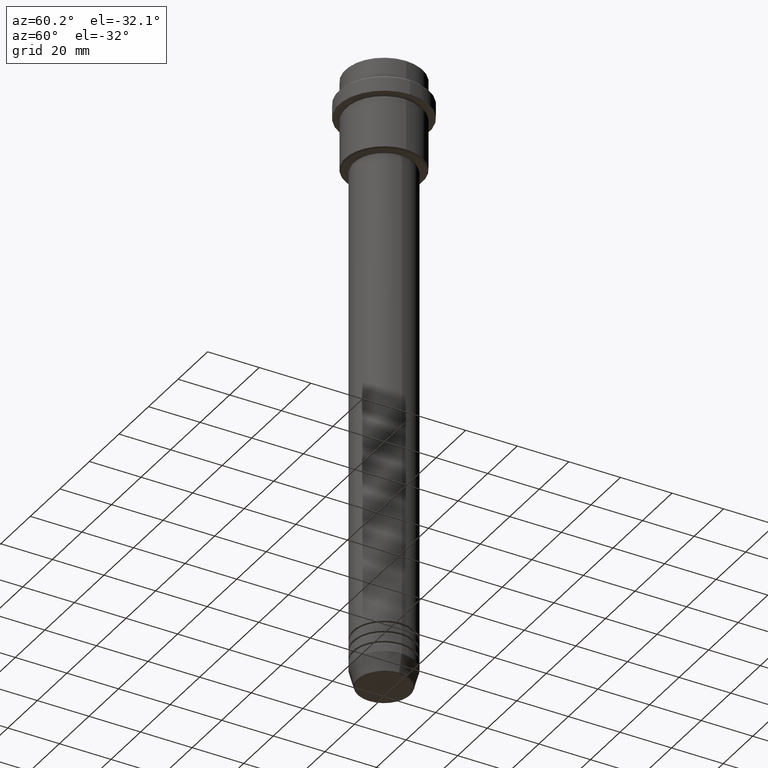
[diagram: clean part render]
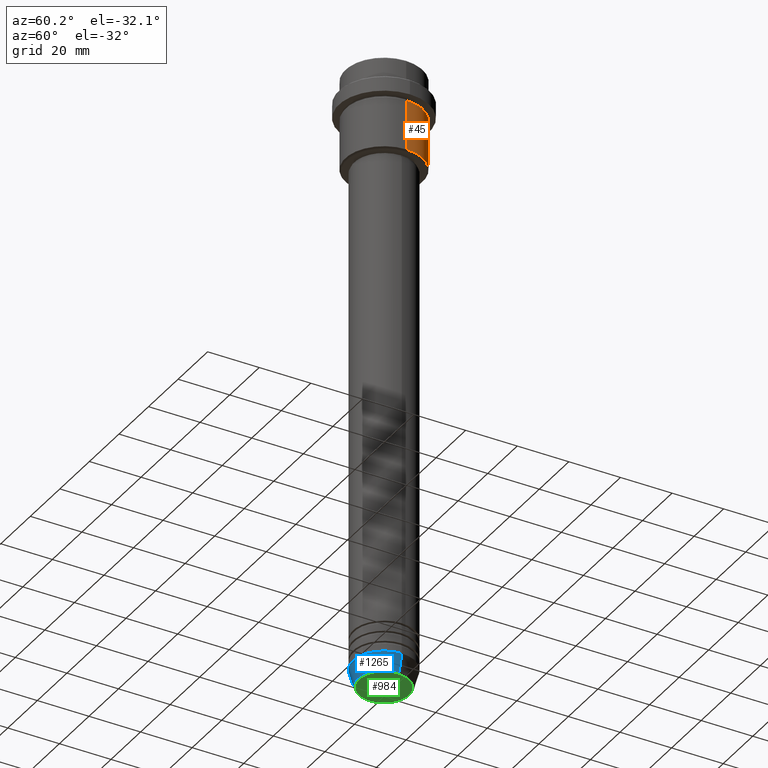
[diagram: same view with three faces highlighted in distinct colors, each labeled with its STEP entity id]
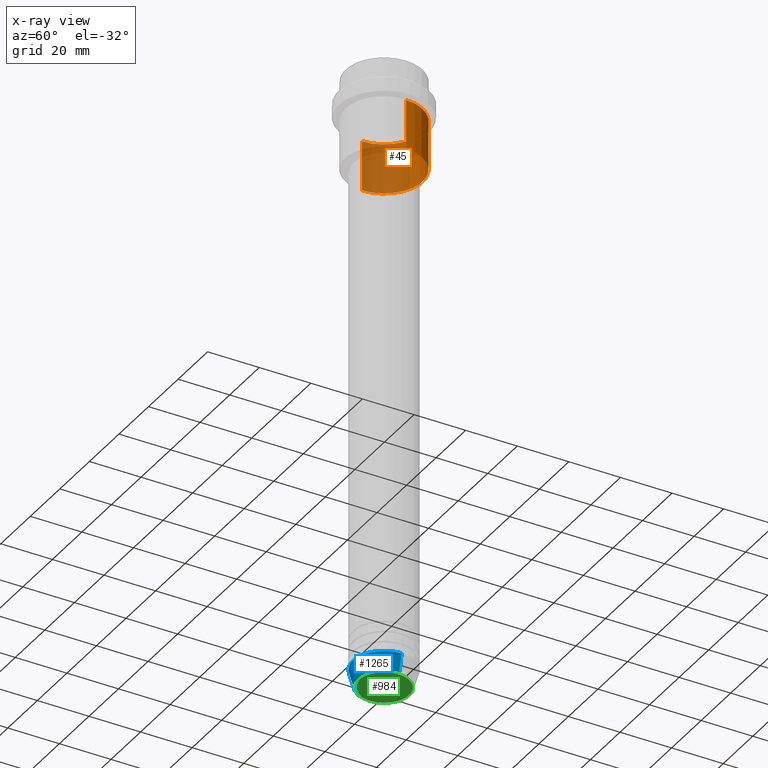
[diagram: x-ray of the same camera — body ghosted, the three highlighted faces saturated]
A machine part, auxiliary view with three faces highlighted in distinct colors.
The next image is the same camera in x-ray (body ghosted, the three faces saturated) — at least one of them is partly hidden behind the body in this view.
Their STEP definitions:

[orange] entity #45 — the highlighted cylindrical surface (partial cylindrical patch) has radius 15 mm, axis along (-0, -0, 1).
#18 = CARTESIAN_POINT ( 'NONE',  ( -15.00000000000000000, 1.836970198721029589E-15, 0.000000000000000000 ) ) ;
#45 = ADVANCED_FACE ( 'NONE', ( #225 ), #465, .T. ) ;
#96 = CIRCLE ( 'NONE', #1009, 15.00000000000000000 ) ;
#172 = ORIENTED_EDGE ( 'NONE', *, *, #313, .T. ) ;
#225 = FACE_OUTER_BOUND ( 'NONE', #430, .T. ) ;
#236 = CIRCLE ( 'NONE', #393, 15.00000000000000178 ) ;
#246 = DIRECTION ( 'NONE',  ( -0.000000000000000000, -0.000000000000000000, 1.000000000000000000 ) ) ;
#255 = AXIS2_PLACEMENT_3D ( 'NONE', #1216, #1108, #568 ) ;
#275 = VERTEX_POINT ( 'NONE', #811 ) ;
#313 = EDGE_CURVE ( 'NONE', #538, #275, #96, .T. ) ;
#393 = AXIS2_PLACEMENT_3D ( 'NONE', #1160, #834, #496 ) ;
#403 = DIRECTION ( 'NONE',  ( -0.000000000000000000, -0.000000000000000000, 1.000000000000000000 ) ) ;
#407 = CARTESIAN_POINT ( 'NONE',  ( 15.00000000000000000, 0.000000000000000000, 0.000000000000000000 ) ) ;
#430 = EDGE_LOOP ( 'NONE', ( #172, #1121, #1200, #1296 ) ) ;
#465 = CYLINDRICAL_SURFACE ( 'NONE', #255, 15.00000000000000000 ) ;
#496 = DIRECTION ( 'NONE',  ( 1.000000000000000000, 0.000000000000000000, 0.000000000000000000 ) ) ;
#507 = LINE ( 'NONE', #407, #1143 ) ;
#538 = VERTEX_POINT ( 'NONE', #918 ) ;
#568 = DIRECTION ( 'NONE',  ( 1.000000000000000000, 0.000000000000000000, 0.000000000000000000 ) ) ;
#570 = CARTESIAN_POINT ( 'NONE',  ( 15.00000000000000178, 0.000000000000000000, -16.00000000000000000 ) ) ;
#627 = DIRECTION ( 'NONE',  ( -1.000000000000000000, 0.000000000000000000, 0.000000000000000000 ) ) ;
#632 = CARTESIAN_POINT ( 'NONE',  ( 0.000000000000000000, 0.000000000000000000, -35.49999999999993605 ) ) ;
#643 = EDGE_CURVE ( 'NONE', #538, #895, #507, .T. ) ;
#669 = EDGE_CURVE ( 'NONE', #895, #1006, #236, .T. ) ;
#811 = CARTESIAN_POINT ( 'NONE',  ( -15.00000000000000000, 1.836970198721029589E-15, -35.49999999999993605 ) ) ;
#834 = DIRECTION ( 'NONE',  ( -0.000000000000000000, -0.000000000000000000, 1.000000000000000000 ) ) ;
#895 = VERTEX_POINT ( 'NONE', #570 ) ;
#918 = CARTESIAN_POINT ( 'NONE',  ( 15.00000000000000000, 0.000000000000000000, -35.49999999999993605 ) ) ;
#1006 = VERTEX_POINT ( 'NONE', #1225 ) ;
#1009 = AXIS2_PLACEMENT_3D ( 'NONE', #632, #403, #627 ) ;
#1108 = DIRECTION ( 'NONE',  ( -0.000000000000000000, -0.000000000000000000, 1.000000000000000000 ) ) ;
#1121 = ORIENTED_EDGE ( 'NONE', *, *, #1389, .T. ) ;
#1143 = VECTOR ( 'NONE', #1240, 1000.000000000000000 ) ;
#1160 = CARTESIAN_POINT ( 'NONE',  ( 0.000000000000000000, 0.000000000000000000, -16.00000000000000000 ) ) ;
#1200 = ORIENTED_EDGE ( 'NONE', *, *, #669, .F. ) ;
#1209 = VECTOR ( 'NONE', #246, 1000.000000000000000 ) ;
#1216 = CARTESIAN_POINT ( 'NONE',  ( 0.000000000000000000, 0.000000000000000000, 0.000000000000000000 ) ) ;
#1225 = CARTESIAN_POINT ( 'NONE',  ( -15.00000000000000355, 1.836970198721029983E-15, -16.00000000000000000 ) ) ;
#1240 = DIRECTION ( 'NONE',  ( -0.000000000000000000, -0.000000000000000000, 1.000000000000000000 ) ) ;
#1296 = ORIENTED_EDGE ( 'NONE', *, *, #643, .F. ) ;
#1336 = LINE ( 'NONE', #18, #1209 ) ;
#1389 = EDGE_CURVE ( 'NONE', #275, #1006, #1336, .T. ) ;

[blue] entity #1265 — the highlighted conical surface has half-angle 15 deg.
#1 = CARTESIAN_POINT ( 'NONE',  ( 0.000000000000000000, 0.000000000000000000, -240.6294095225512422 ) ) ;
#24 = EDGE_CURVE ( 'NONE', #92, #341, #245, .T. ) ;
#27 = CARTESIAN_POINT ( 'NONE',  ( 12.00000000000000000, 0.000000000000000000, -234.0000000000000000 ) ) ;
#92 = VERTEX_POINT ( 'NONE', #986 ) ;
#138 = VECTOR ( 'NONE', #555, 1000.000000000000000 ) ;
#200 = DIRECTION ( 'NONE',  ( 1.000000000000000000, 0.000000000000000000, 0.000000000000000000 ) ) ;
#220 = ORIENTED_EDGE ( 'NONE', *, *, #841, .T. ) ;
#229 = DIRECTION ( 'NONE',  ( 1.000000000000000000, 0.000000000000000000, 0.000000000000000000 ) ) ;
#245 = LINE ( 'NONE', #27, #138 ) ;
#259 = EDGE_LOOP ( 'NONE', ( #1361, #220, #425, #564 ) ) ;
#262 = AXIS2_PLACEMENT_3D ( 'NONE', #1166, #431, #200 ) ;
#304 = AXIS2_PLACEMENT_3D ( 'NONE', #1, #887, #229 ) ;
#324 = DIRECTION ( 'NONE',  ( 1.000000000000000000, 0.000000000000000000, 0.000000000000000000 ) ) ;
#341 = VERTEX_POINT ( 'NONE', #1072 ) ;
#425 = ORIENTED_EDGE ( 'NONE', *, *, #24, .T. ) ;
#431 = DIRECTION ( 'NONE',  ( -0.000000000000000000, -0.000000000000000000, 1.000000000000000000 ) ) ;
#479 = CIRCLE ( 'NONE', #660, 12.00000000000000000 ) ;
#500 = EDGE_CURVE ( 'NONE', #1393, #341, #479, .T. ) ;
#555 = DIRECTION ( 'NONE',  ( 0.2588190451025213501, 0.000000000000000000, 0.9659258262890680902 ) ) ;
#558 = CARTESIAN_POINT ( 'NONE',  ( -12.00000000000000000, 1.469576158976823947E-15, -234.0000000000000000 ) ) ;
#564 = ORIENTED_EDGE ( 'NONE', *, *, #500, .F. ) ;
#621 = CONICAL_SURFACE ( 'NONE', #262, 12.00000000000000000, 0.2617993877991500740 ) ;
#660 = AXIS2_PLACEMENT_3D ( 'NONE', #1118, #1196, #324 ) ;
#667 = LINE ( 'NONE', #558, #762 ) ;
#685 = CARTESIAN_POINT ( 'NONE',  ( -12.00000000000000000, 1.469576158976823947E-15, -234.0000000000000000 ) ) ;
#762 = VECTOR ( 'NONE', #1205, 1000.000000000000000 ) ;
#771 = CARTESIAN_POINT ( 'NONE',  ( -10.22365507213719127, 1.360806402472382744E-15, -240.6294095225512422 ) ) ;
#841 = EDGE_CURVE ( 'NONE', #1319, #92, #1078, .T. ) ;
#887 = DIRECTION ( 'NONE',  ( -0.000000000000000000, -0.000000000000000000, 1.000000000000000000 ) ) ;
#963 = EDGE_CURVE ( 'NONE', #1319, #1393, #667, .T. ) ;
#986 = CARTESIAN_POINT ( 'NONE',  ( 10.22365507213719127, 0.000000000000000000, -240.6294095225512422 ) ) ;
#1072 = CARTESIAN_POINT ( 'NONE',  ( 12.00000000000000000, 0.000000000000000000, -234.0000000000000000 ) ) ;
#1074 = FACE_OUTER_BOUND ( 'NONE', #259, .T. ) ;
#1078 = CIRCLE ( 'NONE', #304, 10.22365507213719127 ) ;
#1118 = CARTESIAN_POINT ( 'NONE',  ( 0.000000000000000000, 0.000000000000000000, -234.0000000000000000 ) ) ;
#1166 = CARTESIAN_POINT ( 'NONE',  ( 0.000000000000000000, 0.000000000000000000, -234.0000000000000000 ) ) ;
#1196 = DIRECTION ( 'NONE',  ( -0.000000000000000000, -0.000000000000000000, 1.000000000000000000 ) ) ;
#1205 = DIRECTION ( 'NONE',  ( -0.2588190451025213501, 3.169619151431772337E-17, 0.9659258262890680902 ) ) ;
#1265 = ADVANCED_FACE ( 'NONE', ( #1074 ), #621, .T. ) ;
#1319 = VERTEX_POINT ( 'NONE', #771 ) ;
#1361 = ORIENTED_EDGE ( 'NONE', *, *, #963, .F. ) ;
#1393 = VERTEX_POINT ( 'NONE', #685 ) ;

[green] entity #984 — the highlighted planar face has unit normal (0, -0, 1).
#30 = DIRECTION ( 'NONE',  ( 1.000000000000000000, 0.000000000000000000, 0.000000000000000000 ) ) ;
#35 = VERTEX_POINT ( 'NONE', #253 ) ;
#49 = DIRECTION ( 'NONE',  ( 1.000000000000000000, 0.000000000000000000, 0.000000000000000000 ) ) ;
#85 = VERTEX_POINT ( 'NONE', #664 ) ;
#238 = AXIS2_PLACEMENT_3D ( 'NONE', #350, #1332, #30 ) ;
#253 = CARTESIAN_POINT ( 'NONE',  ( -9.740692158992658278, 1.222463696683474999E-15, -241.0000000000000000 ) ) ;
#283 = CARTESIAN_POINT ( 'NONE',  ( 0.000000000000000000, 0.000000000000000000, -241.0000000000000000 ) ) ;
#350 = CARTESIAN_POINT ( 'NONE',  ( 0.000000000000000000, 0.000000000000000000, -241.0000000000000000 ) ) ;
#381 = EDGE_LOOP ( 'NONE', ( #897, #1388 ) ) ;
#437 = CIRCLE ( 'NONE', #786, 9.740692158992658278 ) ;
#491 = EDGE_CURVE ( 'NONE', #85, #35, #1098, .T. ) ;
#589 = EDGE_CURVE ( 'NONE', #35, #85, #437, .T. ) ;
#664 = CARTESIAN_POINT ( 'NONE',  ( 9.740692158992658278, 0.000000000000000000, -241.0000000000000000 ) ) ;
#786 = AXIS2_PLACEMENT_3D ( 'NONE', #283, #933, #1358 ) ;
#897 = ORIENTED_EDGE ( 'NONE', *, *, #491, .T. ) ;
#933 = DIRECTION ( 'NONE',  ( 0.000000000000000000, 0.000000000000000000, -1.000000000000000000 ) ) ;
#984 = ADVANCED_FACE ( 'NONE', ( #998 ), #1321, .F. ) ;
#998 = FACE_OUTER_BOUND ( 'NONE', #381, .T. ) ;
#1098 = CIRCLE ( 'NONE', #1248, 9.740692158992658278 ) ;
#1134 = CARTESIAN_POINT ( 'NONE',  ( 0.000000000000000000, 0.000000000000000000, -241.0000000000000000 ) ) ;
#1192 = DIRECTION ( 'NONE',  ( 0.000000000000000000, 0.000000000000000000, -1.000000000000000000 ) ) ;
#1248 = AXIS2_PLACEMENT_3D ( 'NONE', #1134, #1192, #49 ) ;
#1321 = PLANE ( 'NONE',  #238 ) ;
#1332 = DIRECTION ( 'NONE',  ( 0.000000000000000000, -0.000000000000000000, 1.000000000000000000 ) ) ;
#1358 = DIRECTION ( 'NONE',  ( 1.000000000000000000, 0.000000000000000000, 0.000000000000000000 ) ) ;
#1388 = ORIENTED_EDGE ( 'NONE', *, *, #589, .T. ) ;